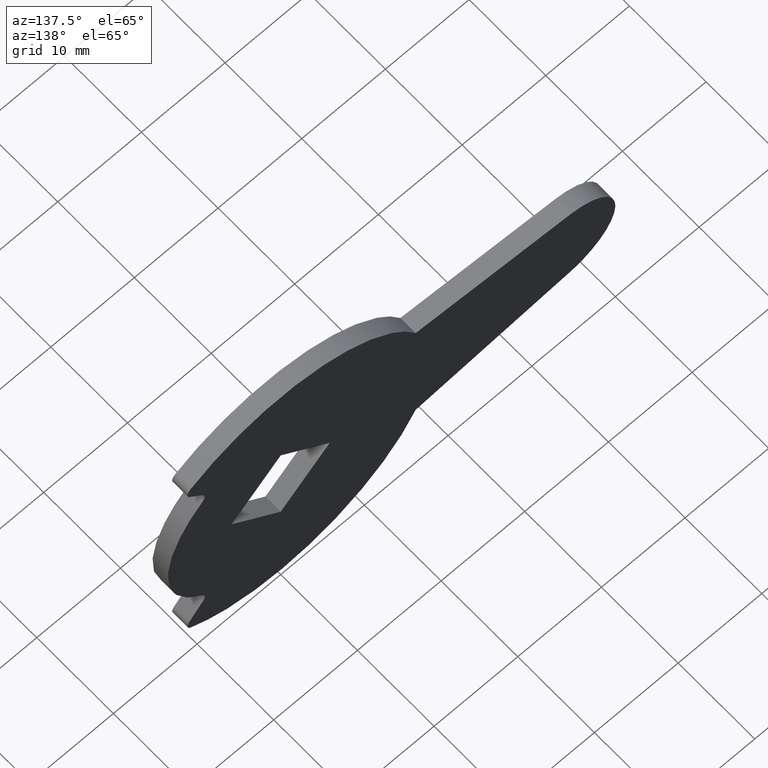
[diagram: clean part render]
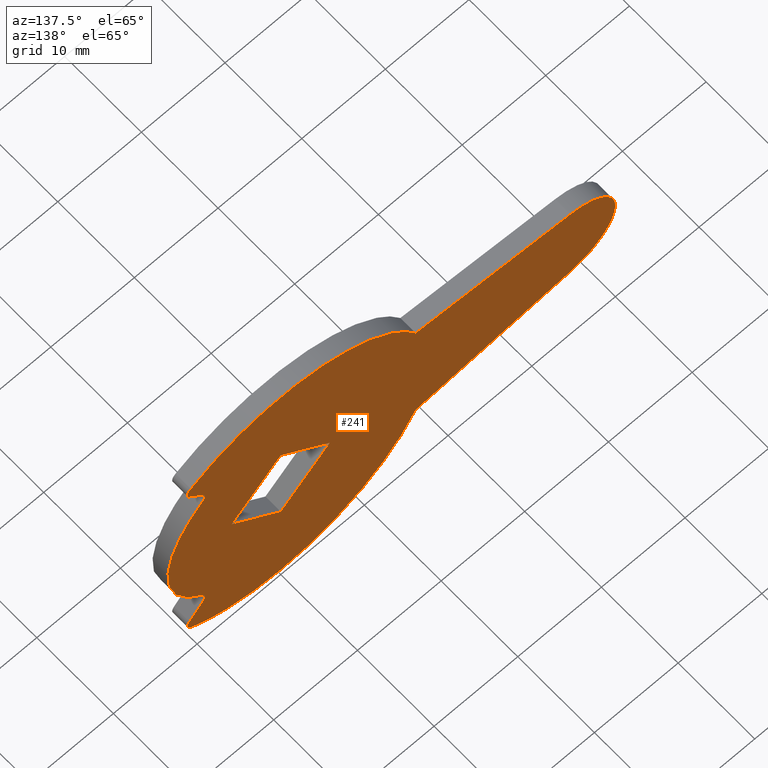
[diagram: same view with one face highlighted and labeled with its STEP entity id]
A machine part, auxiliary view. The second image highlights one B-rep face of the part: STEP entity #241.
In plain terms, the highlighted face is a freeform B-spline surface patch.
Its self-contained STEP definition (entity closure, byte-faithful):
#44=CARTESIAN_POINT('',(-42.672116572253337,0.0,19.798160946943760));
#45=CARTESIAN_POINT('',(16.172309228567329,0.0,19.798160946943760));
#46=CARTESIAN_POINT('',(-42.672116572253337,0.0,-19.798180419614450));
#47=CARTESIAN_POINT('',(16.172309228567329,0.0,-19.798180419614450));
#48=B_SPLINE_SURFACE_WITH_KNOTS('',1,1,((#44,#46),(#45,#47)),.UNSPECIFIED.,.F.,.F.,.U.,(2,2),(2,2),(0.0,58.844425800820673),(0.0,39.596341366558207),.UNSPECIFIED.);
#49=CARTESIAN_POINT('',(-16.124516390019249,0.0,7.999998199249859));
#50=VERTEX_POINT('',#49);
#51=CARTESIAN_POINT('',(-34.633145301659049,0.0,5.966479173588591));
#52=VERTEX_POINT('',#51);
#53=CARTESIAN_POINT('',(-16.124516390019249,0.0,7.999998199249859));
#54=CARTESIAN_POINT('',(-34.633145301659049,0.0,5.966479173588591));
#55=QUASI_UNIFORM_CURVE('',1,(#53,#54),.UNSPECIFIED.,.F.,.U.);
#56=EDGE_CURVE('',#50,#52,#55,.T.);
#57=ORIENTED_EDGE('',*,*,#56,.F.);
#58=CARTESIAN_POINT('',(10.739072857427560,0.0,14.445526761287001));
#59=VERTEX_POINT('',#58);
#60=CARTESIAN_POINT('',(10.739072857427580,0.0,14.445526761287010));
#61=CARTESIAN_POINT('',(3.984586888391909,0.0,19.466919151968014));
#62=CARTESIAN_POINT('',(-4.199630048120307,0.0,17.503235016676548));
#63=CARTESIAN_POINT('',(-12.383846984632507,0.0,15.539550881385084));
#64=CARTESIAN_POINT('',(-16.124516390019242,0.0,7.999998199249866));
#72=(BOUNDED_CURVE()B_SPLINE_CURVE(2,(#60,#61,#62,#63,#64),.UNSPECIFIED.,.F.,.U.)B_SPLINE_CURVE_WITH_KNOTS((3,2,3),(0.0,0.500000000000000,1.0),.UNSPECIFIED.)CURVE()GEOMETRIC_REPRESENTATION_ITEM()RATIONAL_B_SPLINE_CURVE((1.0,0.905864952288435,1.0,0.905864952288435,1.0))REPRESENTATION_ITEM(''));
#73=EDGE_CURVE('',#59,#50,#72,.T.);
#74=ORIENTED_EDGE('',*,*,#73,.F.);
#75=CARTESIAN_POINT('',(10.903888410565161,0.0,12.994704011845860));
#76=VERTEX_POINT('',#75);
#77=CARTESIAN_POINT('',(10.903888410565150,0.0,12.994704011845871));
#78=CARTESIAN_POINT('',(11.185033449875226,0.0,13.324930315240922));
#79=CARTESIAN_POINT('',(11.136079863430229,0.0,13.755854311969820));
#80=CARTESIAN_POINT('',(11.087126276985247,0.0,14.186778308698713));
#81=CARTESIAN_POINT('',(10.739072857427569,0.0,14.445526761287020));
#89=(BOUNDED_CURVE()B_SPLINE_CURVE(2,(#77,#78,#79,#80,#81),.UNSPECIFIED.,.F.,.U.)B_SPLINE_CURVE_WITH_KNOTS((3,2,3),(0.0,0.500000000000000,1.0),.UNSPECIFIED.)CURVE()GEOMETRIC_REPRESENTATION_ITEM()RATIONAL_B_SPLINE_CURVE((1.0,0.917438250673473,1.0,0.917438250673473,1.0))REPRESENTATION_ITEM(''));
#90=EDGE_CURVE('',#76,#59,#89,.T.);
#91=ORIENTED_EDGE('',*,*,#90,.F.);
#92=CARTESIAN_POINT('',(9.302911589461571,0.0,11.086695988185660));
#93=VERTEX_POINT('',#92);
#94=CARTESIAN_POINT('',(9.302911589461571,0.0,11.086695988185660));
#95=CARTESIAN_POINT('',(10.903888410565161,0.0,12.994704011845860));
#96=QUASI_UNIFORM_CURVE('',1,(#94,#95),.UNSPECIFIED.,.F.,.U.);
#97=EDGE_CURVE('',#93,#76,#96,.T.);
#98=ORIENTED_EDGE('',*,*,#97,.F.);
#99=CARTESIAN_POINT('',(9.370201414459581,0.0,9.718512161400970));
#100=VERTEX_POINT('',#99);
#101=CARTESIAN_POINT('',(9.302911589461564,0.0,11.086695988185671));
#102=CARTESIAN_POINT('',(8.693486324257897,0.0,10.370976687543207));
#103=CARTESIAN_POINT('',(9.370201414459581,0.0,9.718512161400970));
#111=(BOUNDED_CURVE()B_SPLINE_CURVE(2,(#101,#102,#103),.UNSPECIFIED.,.F.,.U.)CURVE()GEOMETRIC_REPRESENTATION_ITEM()QUASI_UNIFORM_CURVE()RATIONAL_B_SPLINE_CURVE((1.0,0.728615029618787,1.0))REPRESENTATION_ITEM(''));
#112=EDGE_CURVE('',#93,#100,#111,.T.);
#113=ORIENTED_EDGE('',*,*,#112,.T.);
#114=CARTESIAN_POINT('',(9.370232998813620,0.0,-9.718481708829620));
#115=VERTEX_POINT('',#114);
#116=CARTESIAN_POINT('',(9.370232998813620,0.0,-9.718481708829620));
#117=CARTESIAN_POINT('',(13.500002456554776,0.0,-5.736679563119544));
#118=CARTESIAN_POINT('',(13.499993134639370,0.0,0.000021937009793));
#119=CARTESIAN_POINT('',(13.499983812723970,0.0,5.736723437139132));
#120=CARTESIAN_POINT('',(9.370201414459576,0.0,9.718512161400966));
#128=(BOUNDED_CURVE()B_SPLINE_CURVE(2,(#116,#117,#118,#119,#120),.UNSPECIFIED.,.F.,.U.)B_SPLINE_CURVE_WITH_KNOTS((3,2,3),(0.0,0.500000000000000,1.0),.UNSPECIFIED.)CURVE()GEOMETRIC_REPRESENTATION_ITEM()RATIONAL_B_SPLINE_CURVE((1.0,0.920350869292249,1.0,0.920350869292249,1.0))REPRESENTATION_ITEM(''));
#129=EDGE_CURVE('',#115,#100,#128,.T.);
#130=ORIENTED_EDGE('',*,*,#129,.F.);
#131=CARTESIAN_POINT('',(9.302911589459120,0.0,-11.086695988182900));
#132=VERTEX_POINT('',#131);
#133=CARTESIAN_POINT('',(9.370232998813631,0.0,-9.718481708829630));
#134=CARTESIAN_POINT('',(8.693520258583256,0.0,-10.370948212989592));
#135=CARTESIAN_POINT('',(9.302911589459129,0.0,-11.086695988182891));
#143=(BOUNDED_CURVE()B_SPLINE_CURVE(2,(#133,#134,#135),.UNSPECIFIED.,.F.,.U.)CURVE()GEOMETRIC_REPRESENTATION_ITEM()QUASI_UNIFORM_CURVE()RATIONAL_B_SPLINE_CURVE((1.0,0.728632280257199,1.0))REPRESENTATION_ITEM(''));
#144=EDGE_CURVE('',#115,#132,#143,.T.);
#145=ORIENTED_EDGE('',*,*,#144,.T.);
#146=CARTESIAN_POINT('',(10.903888410552099,0.0,-12.994704011830500));
#147=VERTEX_POINT('',#146);
#148=CARTESIAN_POINT('',(10.903888410552099,0.0,-12.994704011830500));
#149=CARTESIAN_POINT('',(9.302911589459120,0.0,-11.086695988182900));
#150=QUASI_UNIFORM_CURVE('',1,(#148,#149),.UNSPECIFIED.,.F.,.U.);
#151=EDGE_CURVE('',#147,#132,#150,.T.);
#152=ORIENTED_EDGE('',*,*,#151,.F.);
#153=CARTESIAN_POINT('',(10.739112776660621,0.0,-14.445497084531420));
#154=VERTEX_POINT('',#153);
#155=CARTESIAN_POINT('',(10.739112776660621,0.0,-14.445497084531430));
#156=CARTESIAN_POINT('',(11.087159702476013,0.0,-14.186750629950188));
#157=CARTESIAN_POINT('',(11.136101848850220,0.0,-13.755831778382770));
#158=CARTESIAN_POINT('',(11.185043995224420,0.0,-13.324912926815346));
#159=CARTESIAN_POINT('',(10.903888410552110,0.0,-12.994704011830491));
#167=(BOUNDED_CURVE()B_SPLINE_CURVE(2,(#155,#156,#157,#158,#159),.UNSPECIFIED.,.F.,.U.)B_SPLINE_CURVE_WITH_KNOTS((3,2,3),(0.0,0.500000000000000,1.0),.UNSPECIFIED.)CURVE()GEOMETRIC_REPRESENTATION_ITEM()RATIONAL_B_SPLINE_CURVE((1.0,0.917434344498665,1.0,0.917434344498665,1.0))REPRESENTATION_ITEM(''));
#168=EDGE_CURVE('',#154,#147,#167,.T.);
#169=ORIENTED_EDGE('',*,*,#168,.F.);
#170=CARTESIAN_POINT('',(-16.124516390019249,0.0,-7.999998199249848));
#171=VERTEX_POINT('',#170);
#172=CARTESIAN_POINT('',(-16.124516390019249,0.0,-7.999998199249840));
#173=CARTESIAN_POINT('',(-12.383854566696858,0.0,-15.539582422374766));
#174=CARTESIAN_POINT('',(-4.199610718877589,0.0,-17.503261055320671));
#175=CARTESIAN_POINT('',(3.984633128941676,0.0,-19.466939688266585));
#176=CARTESIAN_POINT('',(10.739112776660621,0.0,-14.445497084531439));
#184=(BOUNDED_CURVE()B_SPLINE_CURVE(2,(#172,#173,#174,#175,#176),.UNSPECIFIED.,.F.,.U.)B_SPLINE_CURVE_WITH_KNOTS((3,2,3),(0.0,0.500000000000000,1.0),.UNSPECIFIED.)CURVE()GEOMETRIC_REPRESENTATION_ITEM()RATIONAL_B_SPLINE_CURVE((1.0,0.905864136016763,1.0,0.905864136016763,1.0))REPRESENTATION_ITEM(''));
#185=EDGE_CURVE('',#171,#154,#184,.T.);
#186=ORIENTED_EDGE('',*,*,#185,.F.);
#187=CARTESIAN_POINT('',(-34.633145301716652,0.0,-5.966479173582481));
#188=VERTEX_POINT('',#187);
#189=CARTESIAN_POINT('',(-34.633145301716652,0.0,-5.966479173582481));
#190=CARTESIAN_POINT('',(-16.124516390019249,0.0,-7.999998199249848));
#191=QUASI_UNIFORM_CURVE('',1,(#189,#190),.UNSPECIFIED.,.F.,.U.);
#192=EDGE_CURVE('',#188,#171,#191,.T.);
#193=ORIENTED_EDGE('',*,*,#192,.F.);
#194=CARTESIAN_POINT('',(-34.633145301659049,0.0,5.966479173588592));
#195=CARTESIAN_POINT('',(-39.999799999973945,0.0,5.396805595601411));
#196=CARTESIAN_POINT('',(-39.999799999999993,0.0,2.896253E-011));
#197=CARTESIAN_POINT('',(-39.999800000026049,0.0,-5.396805595543485));
#198=CARTESIAN_POINT('',(-34.633145301716652,0.0,-5.966479173582478));
#206=(BOUNDED_CURVE()B_SPLINE_CURVE(2,(#194,#195,#196,#197,#198),.UNSPECIFIED.,.F.,.U.)B_SPLINE_CURVE_WITH_KNOTS((3,2,3),(0.0,0.500000000000000,1.0),.UNSPECIFIED.)CURVE()GEOMETRIC_REPRESENTATION_ITEM()RATIONAL_B_SPLINE_CURVE((1.0,0.743490938169830,1.0,0.743490938169830,1.0))REPRESENTATION_ITEM(''));
#207=EDGE_CURVE('',#52,#188,#206,.T.);
#208=ORIENTED_EDGE('',*,*,#207,.F.);
#209=EDGE_LOOP('',(#57,#74,#91,#98,#113,#130,#145,#152,#169,#186,#193,#208));
#210=FACE_OUTER_BOUND('',#209,.T.);
#211=CARTESIAN_POINT('',(5.868999999999900,0.0,0.0));
#212=VERTEX_POINT('',#211);
#213=CARTESIAN_POINT('',(0.000100000000003,0.0,-5.869000000000000));
#214=VERTEX_POINT('',#213);
#215=CARTESIAN_POINT('',(5.868999999999900,0.0,0.0));
#216=CARTESIAN_POINT('',(0.000100000000003,0.0,-5.869000000000000));
#217=QUASI_UNIFORM_CURVE('',1,(#215,#216),.UNSPECIFIED.,.F.,.U.);
#218=EDGE_CURVE('',#212,#214,#217,.T.);
#219=ORIENTED_EDGE('',*,*,#218,.F.);
#220=CARTESIAN_POINT('',(0.000100000000003,0.0,5.868999999999900));
#221=VERTEX_POINT('',#220);
#222=CARTESIAN_POINT('',(0.000100000000003,0.0,5.868999999999900));
#223=CARTESIAN_POINT('',(5.868999999999900,0.0,0.0));
#224=QUASI_UNIFORM_CURVE('',1,(#222,#223),.UNSPECIFIED.,.F.,.U.);
#225=EDGE_CURVE('',#221,#212,#224,.T.);
#226=ORIENTED_EDGE('',*,*,#225,.F.);
#227=CARTESIAN_POINT('',(-5.868900000000000,0.0,0.0));
#228=VERTEX_POINT('',#227);
#229=CARTESIAN_POINT('',(-5.868900000000000,0.0,0.0));
#230=CARTESIAN_POINT('',(0.000100000000003,0.0,5.868999999999900));
#231=QUASI_UNIFORM_CURVE('',1,(#229,#230),.UNSPECIFIED.,.F.,.U.);
#232=EDGE_CURVE('',#228,#221,#231,.T.);
#233=ORIENTED_EDGE('',*,*,#232,.F.);
#234=CARTESIAN_POINT('',(0.000100000000003,0.0,-5.869000000000000));
#235=CARTESIAN_POINT('',(-5.868900000000000,0.0,0.0));
#236=QUASI_UNIFORM_CURVE('',1,(#234,#235),.UNSPECIFIED.,.F.,.U.);
#237=EDGE_CURVE('',#214,#228,#236,.T.);
#238=ORIENTED_EDGE('',*,*,#237,.F.);
#239=EDGE_LOOP('',(#219,#226,#233,#238));
#240=FACE_BOUND('',#239,.T.);
#241=ADVANCED_FACE('',(#210,#240),#48,.T.);